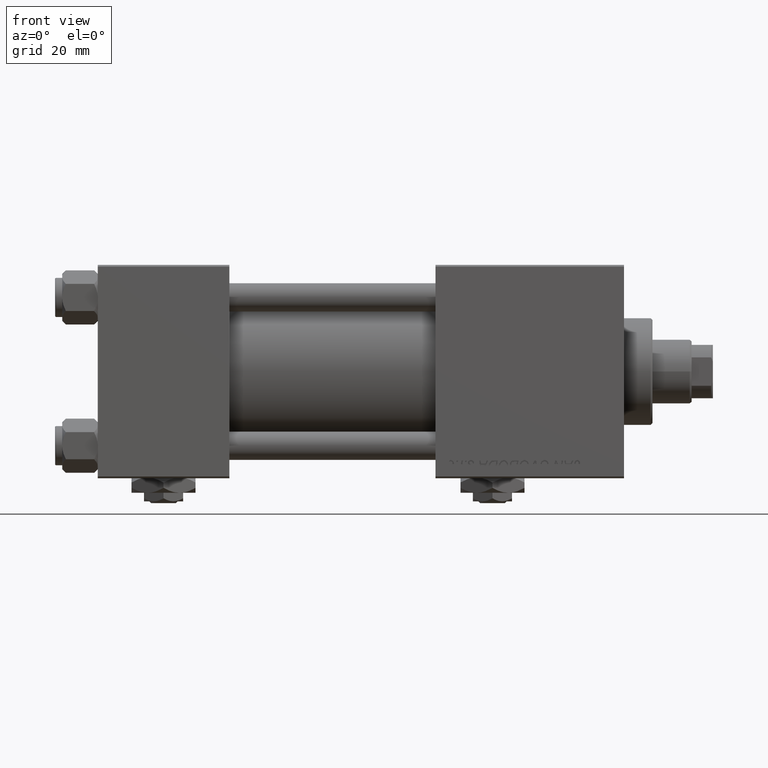
[diagram: clean part render]
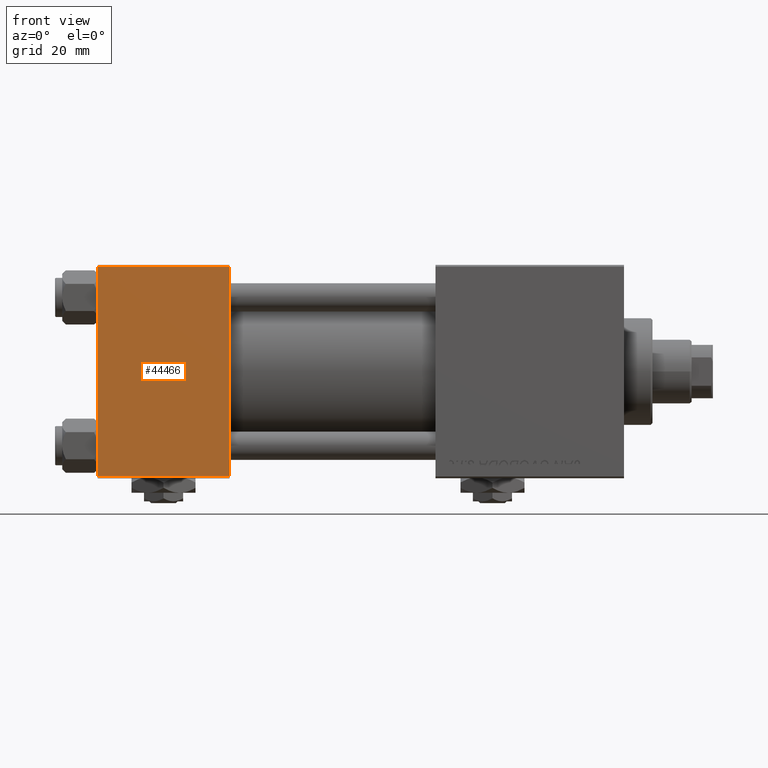
[diagram: same view with one face highlighted and labeled with its STEP entity id]
A machine part, front view. The second image highlights one B-rep face of the part: STEP entity #44466.
In plain terms, the highlighted planar face has unit normal (0, 1, 0).
Its self-contained STEP definition (entity closure, byte-faithful):
#3233 = CARTESIAN_POINT ( 'NONE',  ( 37.00000000000000000, -30.00000000000000000, 29.49999999999999289 ) ) ;
#3600 = EDGE_LOOP ( 'NONE', ( #31877, #46014, #14403, #11526 ) ) ;
#4135 = PLANE ( 'NONE',  #35684 ) ;
#6015 = CARTESIAN_POINT ( 'NONE',  ( 37.00000000000000000, -30.00000000000000000, -29.50000000000001776 ) ) ;
#8943 = CARTESIAN_POINT ( 'NONE',  ( 37.00000000000000000, -30.00000000000000000, 29.99999999999999289 ) ) ;
#11248 = VECTOR ( 'NONE', #33766, 1000.000000000000000 ) ;
#11526 = ORIENTED_EDGE ( 'NONE', *, *, #45821, .T. ) ;
#13214 = EDGE_CURVE ( 'NONE', #48494, #38167, #40090, .T. ) ;
#14403 = ORIENTED_EDGE ( 'NONE', *, *, #29252, .F. ) ;
#15021 = VECTOR ( 'NONE', #49104, 1000.000000000000000 ) ;
#15062 = EDGE_CURVE ( 'NONE', #38167, #22222, #26365, .T. ) ;
#15666 = CARTESIAN_POINT ( 'NONE',  ( 37.00000000000000000, -30.00000000000000000, -29.50000000000001776 ) ) ;
#15913 = VERTEX_POINT ( 'NONE', #23078 ) ;
#19980 = CARTESIAN_POINT ( 'NONE',  ( 37.00000000000000000, -30.00000000000000000, 29.99999999999999289 ) ) ;
#22222 = VERTEX_POINT ( 'NONE', #15666 ) ;
#22985 = CARTESIAN_POINT ( 'NONE',  ( 0.000000000000000000, -30.00000000000000000, -29.50000000000001776 ) ) ;
#23078 = CARTESIAN_POINT ( 'NONE',  ( 37.00000000000000000, -30.00000000000000000, 29.49999999999999289 ) ) ;
#26365 = LINE ( 'NONE', #6015, #11248 ) ;
#29252 = EDGE_CURVE ( 'NONE', #15913, #22222, #45394, .T. ) ;
#30646 = VECTOR ( 'NONE', #31354, 1000.000000000000000 ) ;
#31354 = DIRECTION ( 'NONE',  ( 0.000000000000000000, 0.000000000000000000, -1.000000000000000000 ) ) ;
#31496 = VECTOR ( 'NONE', #32282, 1000.000000000000000 ) ;
#31872 = FACE_OUTER_BOUND ( 'NONE', #3600, .T. ) ;
#31877 = ORIENTED_EDGE ( 'NONE', *, *, #13214, .T. ) ;
#32282 = DIRECTION ( 'NONE',  ( -1.000000000000000000, 0.000000000000000000, 0.000000000000000000 ) ) ;
#33766 = DIRECTION ( 'NONE',  ( 1.000000000000000000, 0.000000000000000000, 0.000000000000000000 ) ) ;
#35684 = AXIS2_PLACEMENT_3D ( 'NONE', #19980, #36106, #48264 ) ;
#35858 = CARTESIAN_POINT ( 'NONE',  ( 0.000000000000000000, -30.00000000000000000, 29.99999999999999289 ) ) ;
#36106 = DIRECTION ( 'NONE',  ( -0.000000000000000000, 1.000000000000000000, 0.000000000000000000 ) ) ;
#38167 = VERTEX_POINT ( 'NONE', #22985 ) ;
#40090 = LINE ( 'NONE', #35858, #30646 ) ;
#44466 = ADVANCED_FACE ( 'NONE', ( #31872 ), #4135, .F. ) ;
#45394 = LINE ( 'NONE', #8943, #15021 ) ;
#45821 = EDGE_CURVE ( 'NONE', #15913, #48494, #51855, .T. ) ;
#46014 = ORIENTED_EDGE ( 'NONE', *, *, #15062, .T. ) ;
#48264 = DIRECTION ( 'NONE',  ( 0.000000000000000000, -0.000000000000000000, 1.000000000000000000 ) ) ;
#48494 = VERTEX_POINT ( 'NONE', #49958 ) ;
#49104 = DIRECTION ( 'NONE',  ( 0.000000000000000000, 0.000000000000000000, -1.000000000000000000 ) ) ;
#49958 = CARTESIAN_POINT ( 'NONE',  ( 0.000000000000000000, -30.00000000000000000, 29.49999999999999289 ) ) ;
#51855 = LINE ( 'NONE', #3233, #31496 ) ;